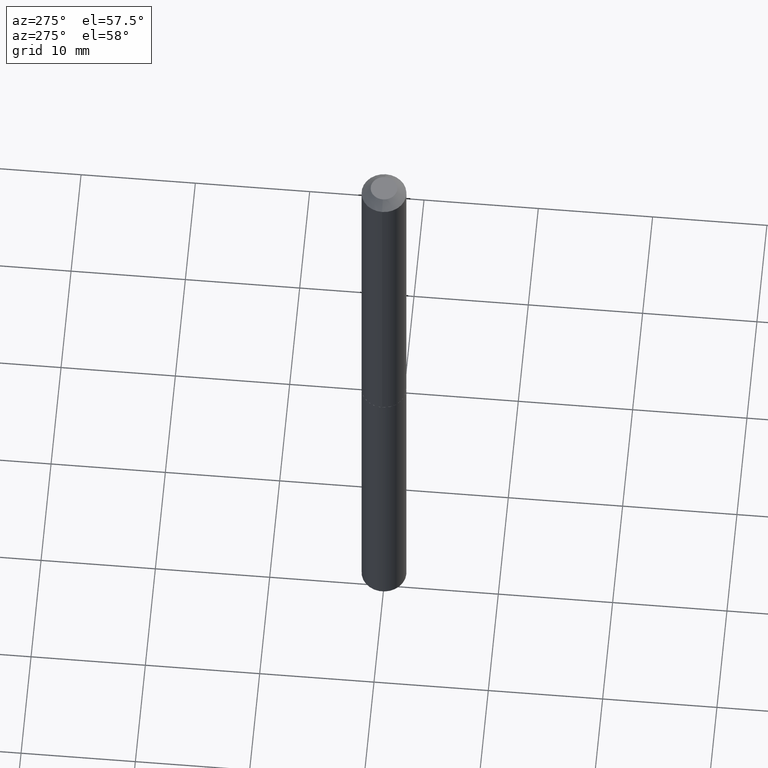
[diagram: clean part render]
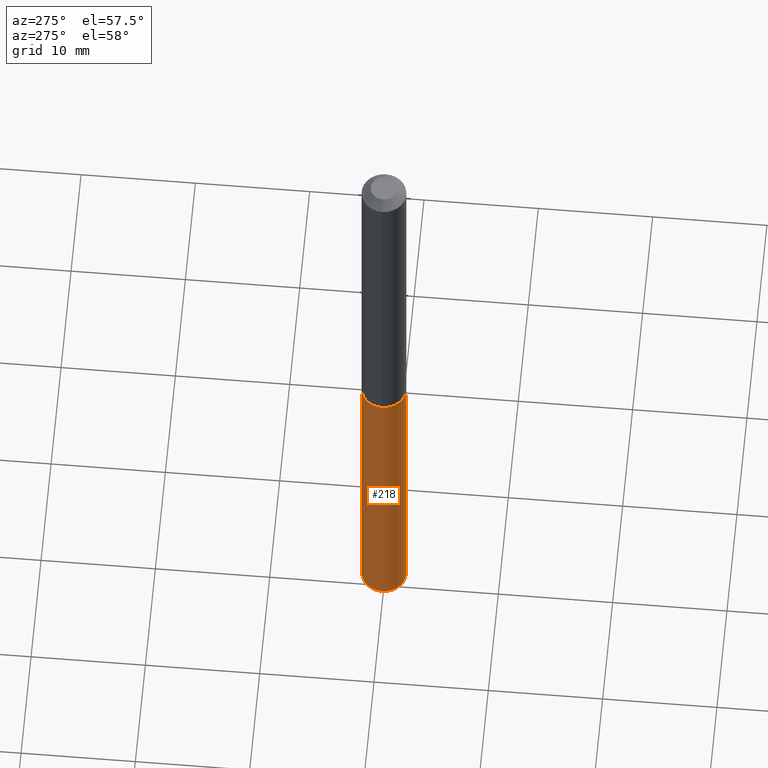
[diagram: same view with one face highlighted and labeled with its STEP entity id]
A machine part, auxiliary view. The second image highlights one B-rep face of the part: STEP entity #218.
In plain terms, the highlighted cylindrical surface (edge-blend (fillet) strip) has radius 1.9558 mm, axis along (-0, 0, 1).
Its self-contained STEP definition (entity closure, byte-faithful):
#2 = CARTESIAN_POINT ( 'NONE',  ( 5.471179065353372867E-16, 0.07699999999999551648, -1.279000000000000581 ) ) ;
#3 = DIRECTION ( 'NONE',  ( -6.982962677686266711E-15, -1.000000000000000000, 3.547854537226316370E-15 ) ) ;
#4 = CIRCLE ( 'NONE', #12, 0.07699999999999998512 ) ;
#12 = AXIS2_PLACEMENT_3D ( 'NONE', #151, #271, #3 ) ;
#32 = VECTOR ( 'NONE', #297, 39.37007874015748143 ) ;
#62 = LINE ( 'NONE', #273, #32 ) ;
#73 = ORIENTED_EDGE ( 'NONE', *, *, #211, .T. ) ;
#95 = EDGE_CURVE ( 'NONE', #195, #127, #356, .T. ) ;
#118 = VERTEX_POINT ( 'NONE', #347 ) ;
#121 = CARTESIAN_POINT ( 'NONE',  ( 3.127754603110790340E-29, -4.465604632380384411E-15, -1.279000000000000137 ) ) ;
#127 = VERTEX_POINT ( 'NONE', #137 ) ;
#134 = EDGE_LOOP ( 'NONE', ( #212, #73, #265, #150 ) ) ;
#137 = CARTESIAN_POINT ( 'NONE',  ( -5.376881261818110691E-16, -0.07700000000000446765, -1.278999999999999915 ) ) ;
#145 = AXIS2_PLACEMENT_3D ( 'NONE', #121, #334, #364 ) ;
#150 = ORIENTED_EDGE ( 'NONE', *, *, #308, .F. ) ;
#151 = CARTESIAN_POINT ( 'NONE',  ( 3.127754603110790340E-29, -4.465604632380384411E-15, -1.279000000000000137 ) ) ;
#182 = VECTOR ( 'NONE', #321, 39.37007874015748143 ) ;
#190 = VERTEX_POINT ( 'NONE', #2 ) ;
#195 = VERTEX_POINT ( 'NONE', #390 ) ;
#208 = FACE_OUTER_BOUND ( 'NONE', #134, .T. ) ;
#211 = EDGE_CURVE ( 'NONE', #118, #195, #267, .T. ) ;
#212 = ORIENTED_EDGE ( 'NONE', *, *, #277, .F. ) ;
#218 = ADVANCED_FACE ( 'NONE', ( #208 ), #303, .T. ) ;
#234 = CARTESIAN_POINT ( 'NONE',  ( -5.376881261818110691E-16, -0.07700000000000446765, -1.278999999999999915 ) ) ;
#243 = DIRECTION ( 'NONE',  ( -2.445605172219321034E-29, 3.491286054920720957E-15, 1.000000000000000000 ) ) ;
#246 = DIRECTION ( 'NONE',  ( -6.982962677686266711E-15, -1.000000000000000000, 3.547854537226316370E-15 ) ) ;
#265 = ORIENTED_EDGE ( 'NONE', *, *, #95, .T. ) ;
#267 = CIRCLE ( 'NONE', #345, 0.07699999999999998512 ) ;
#271 = DIRECTION ( 'NONE',  ( -2.445605172219321034E-29, 3.491286054920720957E-15, 1.000000000000000000 ) ) ;
#273 = CARTESIAN_POINT ( 'NONE',  ( 5.471179065353082960E-16, 0.07699999999999551648, -1.279000000000000581 ) ) ;
#277 = EDGE_CURVE ( 'NONE', #118, #190, #62, .T. ) ;
#297 = DIRECTION ( 'NONE',  ( -2.445605172219321314E-29, 3.491286054920720957E-15, 1.000000000000000000 ) ) ;
#303 = CYLINDRICAL_SURFACE ( 'NONE', #145, 0.07699999999999998512 ) ;
#308 = EDGE_CURVE ( 'NONE', #190, #127, #4, .T. ) ;
#321 = DIRECTION ( 'NONE',  ( -2.445605172219321314E-29, 3.491286054920720957E-15, 1.000000000000000000 ) ) ;
#334 = DIRECTION ( 'NONE',  ( -2.445605172219321034E-29, 3.491286054920720957E-15, 1.000000000000000000 ) ) ;
#345 = AXIS2_PLACEMENT_3D ( 'NONE', #388, #243, #246 ) ;
#347 = CARTESIAN_POINT ( 'NONE',  ( 5.471179065353369908E-16, 0.07699999999999142253, -2.453733732334878681 ) ) ;
#356 = LINE ( 'NONE', #234, #182 ) ;
#364 = DIRECTION ( 'NONE',  ( -6.982962677686266711E-15, -1.000000000000000000, 3.547854537226316370E-15 ) ) ;
#388 = CARTESIAN_POINT ( 'NONE',  ( 6.000689494889475679E-29, -8.566936130326114542E-15, -2.453733732334878237 ) ) ;
#390 = CARTESIAN_POINT ( 'NONE',  ( -5.376881261817823742E-16, -0.07700000000000856160, -2.453733732334877793 ) ) ;